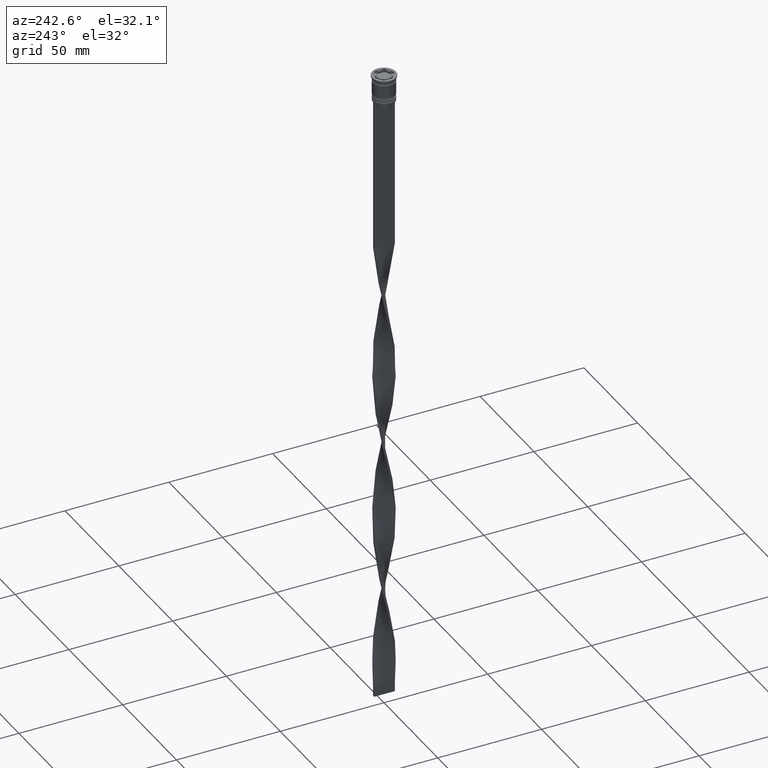
[diagram: clean part render]
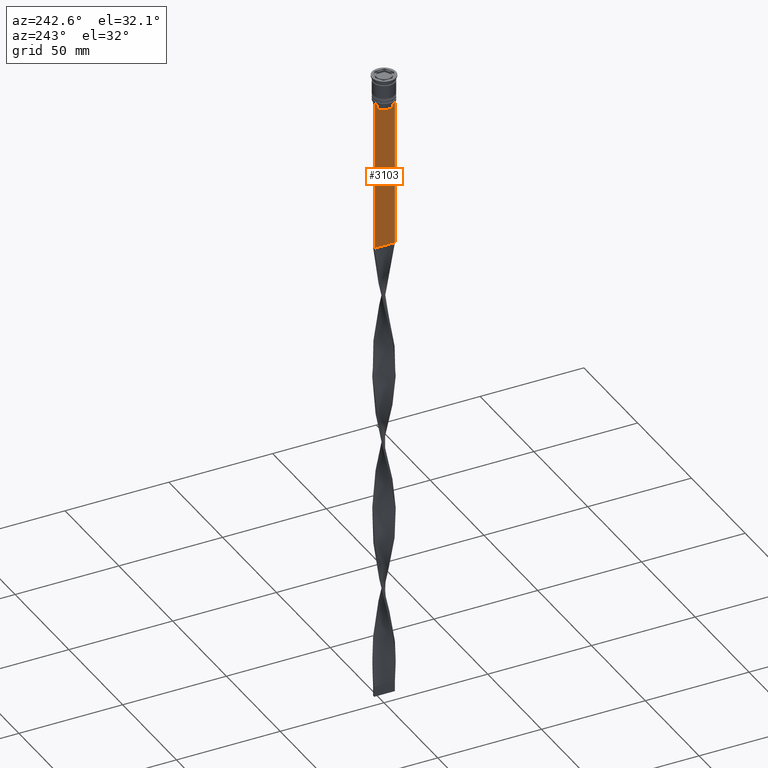
[diagram: same view with one face highlighted and labeled with its STEP entity id]
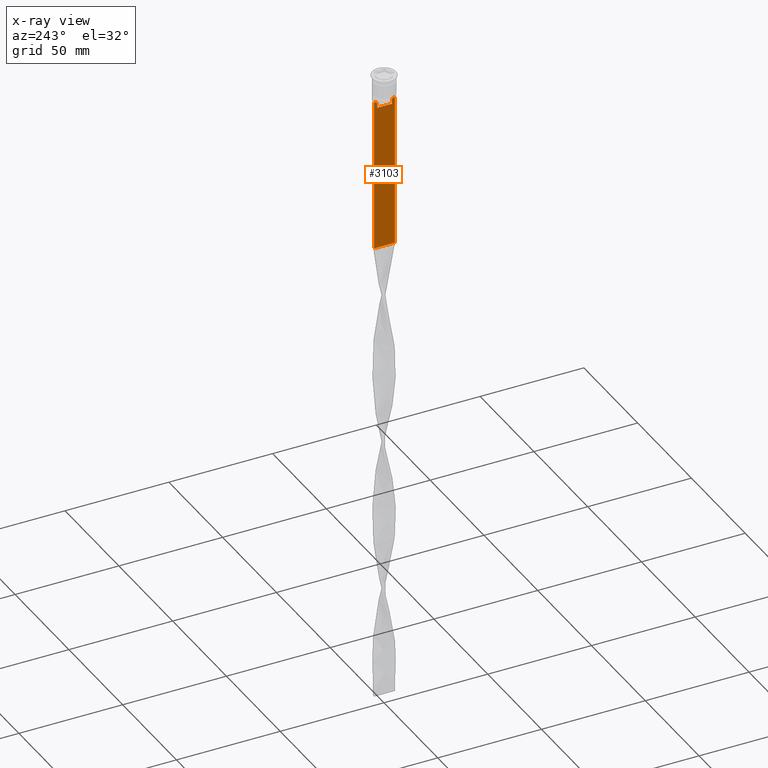
[diagram: x-ray of the same camera — body ghosted, the highlighted face saturated]
A machine part, auxiliary view. The second image highlights one B-rep face of the part: STEP entity #3103.
The next image is the same camera in x-ray: the body ghosted, the highlighted face saturated — about 0% of this face is hidden behind the body in this view.
In plain terms, the highlighted planar face has unit normal (-1, 0, 0).
Its self-contained STEP definition (entity closure, byte-faithful):
#1 = DIRECTION ( 'NONE',  ( 0.000000000000000000, 0.000000000000000000, -1.000000000000000000 ) ) ;
#55 = LINE ( 'NONE', #2759, #1977 ) ;
#86 = ORIENTED_EDGE ( 'NONE', *, *, #87, .F. ) ;
#87 = EDGE_CURVE ( 'NONE', #2163, #2978, #1604, .T. ) ;
#203 = DIRECTION ( 'NONE',  ( 0.000000000000000000, 1.000000000000000000, 0.000000000000000000 ) ) ;
#261 = VECTOR ( 'NONE', #203, 1000.000000000000000 ) ;
#275 = LINE ( 'NONE', #3243, #1540 ) ;
#292 = CARTESIAN_POINT ( 'NONE',  ( -0.5000000000000000000, -4.999999999999999112, -12.50000000000000000 ) ) ;
#310 = CARTESIAN_POINT ( 'NONE',  ( -0.5000000000000000000, -4.119769411022908834, -12.50000000000000000 ) ) ;
#334 = DIRECTION ( 'NONE',  ( 0.000000000000000000, 0.000000000000000000, -1.000000000000000000 ) ) ;
#374 = VECTOR ( 'NONE', #3434, 1000.000000000000000 ) ;
#418 = ORIENTED_EDGE ( 'NONE', *, *, #973, .F. ) ;
#419 = EDGE_CURVE ( 'NONE', #2377, #1474, #823, .T. ) ;
#515 = CARTESIAN_POINT ( 'NONE',  ( -0.5000000000000000000, 3.615591237958188486, -15.50000000000000000 ) ) ;
#547 = EDGE_CURVE ( 'NONE', #2393, #1165, #55, .T. ) ;
#596 = CARTESIAN_POINT ( 'NONE',  ( -0.5000000000000000000, -3.615591237958188042, -13.00000000000000178 ) ) ;
#629 = ORIENTED_EDGE ( 'NONE', *, *, #1768, .F. ) ;
#671 = CARTESIAN_POINT ( 'NONE',  ( -0.5000000000000000000, -3.951794168112525263, -12.66675163073526100 ) ) ;
#692 = EDGE_CURVE ( 'NONE', #1717, #2377, #3292, .T. ) ;
#729 = CARTESIAN_POINT ( 'NONE',  ( -0.5000000000000000000, -4.119769411022908834, -12.50000000000000000 ) ) ;
#823 = LINE ( 'NONE', #1463, #2803 ) ;
#856 = VERTEX_POINT ( 'NONE', #2138 ) ;
#881 = DIRECTION ( 'NONE',  ( 0.000000000000000000, -1.000000000000000000, 0.000000000000000000 ) ) ;
#936 = CARTESIAN_POINT ( 'NONE',  ( -0.5000000000000000000, 3.615591237958188042, 0.000000000000000000 ) ) ;
#960 = B_SPLINE_CURVE_WITH_KNOTS ( 'NONE', 3,
 ( #596, #3710, #671, #310 ),
 .UNSPECIFIED., .F., .F.,
 ( 4, 4 ),
 ( 0.01745179617248910492, 0.01816207215777258452 ),
 .UNSPECIFIED. ) ;
#973 = EDGE_CURVE ( 'NONE', #856, #1165, #2944, .T. ) ;
#1043 = ORIENTED_EDGE ( 'NONE', *, *, #547, .T. ) ;
#1072 = CARTESIAN_POINT ( 'NONE',  ( -0.5000000000000000000, 3.951794205566887985, -12.66675159355373737 ) ) ;
#1136 = CARTESIAN_POINT ( 'NONE',  ( -0.5000000000000000000, 3.615591237958188042, -13.00000000000000178 ) ) ;
#1165 = VERTEX_POINT ( 'NONE', #2884 ) ;
#1174 = FACE_OUTER_BOUND ( 'NONE', #3323, .T. ) ;
#1221 = VECTOR ( 'NONE', #1952, 1000.000000000000000 ) ;
#1431 = CARTESIAN_POINT ( 'NONE',  ( -0.5000000000000000000, -3.615591237958188486, -15.50000000000000000 ) ) ;
#1463 = CARTESIAN_POINT ( 'NONE',  ( -0.5000000000000000000, -3.615591237958188042, 0.000000000000000000 ) ) ;
#1474 = VERTEX_POINT ( 'NONE', #3105 ) ;
#1540 = VECTOR ( 'NONE', #2380, 1000.000000000000000 ) ;
#1604 = LINE ( 'NONE', #2222, #374 ) ;
#1607 = EDGE_CURVE ( 'NONE', #2393, #1702, #2871, .T. ) ;
#1702 = VERTEX_POINT ( 'NONE', #2073 ) ;
#1717 = VERTEX_POINT ( 'NONE', #515 ) ;
#1720 = CARTESIAN_POINT ( 'NONE',  ( -0.5000000000000000000, -4.999999999999999112, -86.00000000000000000 ) ) ;
#1768 = EDGE_CURVE ( 'NONE', #2978, #856, #275, .T. ) ;
#1927 = ORIENTED_EDGE ( 'NONE', *, *, #1607, .F. ) ;
#1952 = DIRECTION ( 'NONE',  ( 0.000000000000000000, -1.000000000000000000, 0.000000000000000000 ) ) ;
#1977 = VECTOR ( 'NONE', #1, 1000.000000000000000 ) ;
#1990 = EDGE_CURVE ( 'NONE', #1474, #2163, #960, .T. ) ;
#1993 = CARTESIAN_POINT ( 'NONE',  ( -0.5000000000000000000, 3.615591237958188042, -13.00000000000000178 ) ) ;
#2013 = CARTESIAN_POINT ( 'NONE',  ( -0.5000000000000000000, 5.000000000000000888, -12.50000000000000000 ) ) ;
#2029 = DIRECTION ( 'NONE',  ( -1.000000000000000000, 0.000000000000000000, 0.000000000000000000 ) ) ;
#2073 = CARTESIAN_POINT ( 'NONE',  ( -0.5000000000000000000, 4.119769411022908834, -12.50000000000000000 ) ) ;
#2138 = CARTESIAN_POINT ( 'NONE',  ( -0.5000000000000000000, -4.999999999999999112, -86.00000000000000000 ) ) ;
#2163 = VERTEX_POINT ( 'NONE', #729 ) ;
#2222 = CARTESIAN_POINT ( 'NONE',  ( -0.5000000000000000000, -4.999999999999999112, -12.50000000000000000 ) ) ;
#2292 = VECTOR ( 'NONE', #334, 1000.000000000000000 ) ;
#2350 = ORIENTED_EDGE ( 'NONE', *, *, #692, .F. ) ;
#2357 = CARTESIAN_POINT ( 'NONE',  ( -0.5000000000000000000, 4.119769411022908834, -12.50000000000000000 ) ) ;
#2377 = VERTEX_POINT ( 'NONE', #1431 ) ;
#2380 = DIRECTION ( 'NONE',  ( 0.000000000000000000, 0.000000000000000000, -1.000000000000000000 ) ) ;
#2393 = VERTEX_POINT ( 'NONE', #2013 ) ;
#2397 = PLANE ( 'NONE',  #2745 ) ;
#2553 = VECTOR ( 'NONE', #881, 1000.000000000000000 ) ;
#2649 = EDGE_CURVE ( 'NONE', #2723, #1717, #3669, .T. ) ;
#2723 = VERTEX_POINT ( 'NONE', #1993 ) ;
#2745 = AXIS2_PLACEMENT_3D ( 'NONE', #3327, #2029, #3239 ) ;
#2759 = CARTESIAN_POINT ( 'NONE',  ( -0.5000000000000000000, 5.000000000000000888, -2.450124378879110054 ) ) ;
#2803 = VECTOR ( 'NONE', #2961, 1000.000000000000000 ) ;
#2871 = LINE ( 'NONE', #2892, #1221 ) ;
#2884 = CARTESIAN_POINT ( 'NONE',  ( -0.5000000000000000000, 5.000000000000000888, -86.00000000000000000 ) ) ;
#2892 = CARTESIAN_POINT ( 'NONE',  ( -0.5000000000000000000, -4.999999999999999112, -12.50000000000000000 ) ) ;
#2933 = CARTESIAN_POINT ( 'NONE',  ( -0.5000000000000000000, 3.783746449387932920, -12.83342999751715752 ) ) ;
#2944 = LINE ( 'NONE', #1720, #261 ) ;
#2961 = DIRECTION ( 'NONE',  ( -0.000000000000000000, -0.000000000000000000, 1.000000000000000000 ) ) ;
#2978 = VERTEX_POINT ( 'NONE', #292 ) ;
#3103 = ADVANCED_FACE ( 'NONE', ( #1174 ), #2397, .T. ) ;
#3105 = CARTESIAN_POINT ( 'NONE',  ( -0.5000000000000000000, -3.615591237958188042, -13.00000000000000178 ) ) ;
#3115 = ORIENTED_EDGE ( 'NONE', *, *, #2649, .F. ) ;
#3239 = DIRECTION ( 'NONE',  ( 0.000000000000000000, 0.000000000000000000, 1.000000000000000000 ) ) ;
#3243 = CARTESIAN_POINT ( 'NONE',  ( -0.5000000000000000000, -4.999999999999999112, -2.450124378879110054 ) ) ;
#3280 = EDGE_CURVE ( 'NONE', #1702, #2723, #3667, .T. ) ;
#3292 = LINE ( 'NONE', #3915, #2553 ) ;
#3323 = EDGE_LOOP ( 'NONE', ( #3444, #1927, #1043, #418, #629, #86, #3464, #3879, #2350, #3115 ) ) ;
#3327 = CARTESIAN_POINT ( 'NONE',  ( -0.5000000000000000000, -4.999999999999999112, -2.450124378879110054 ) ) ;
#3434 = DIRECTION ( 'NONE',  ( 0.000000000000000000, -1.000000000000000000, 0.000000000000000000 ) ) ;
#3444 = ORIENTED_EDGE ( 'NONE', *, *, #3280, .F. ) ;
#3464 = ORIENTED_EDGE ( 'NONE', *, *, #1990, .F. ) ;
#3667 = B_SPLINE_CURVE_WITH_KNOTS ( 'NONE', 3,
 ( #2357, #1072, #2933, #1136 ),
 .UNSPECIFIED., .F., .F.,
 ( 4, 4 ),
 ( 0.007067514914986629433, 0.007777582239375527111 ),
 .UNSPECIFIED. ) ;
#3669 = LINE ( 'NONE', #936, #2292 ) ;
#3710 = CARTESIAN_POINT ( 'NONE',  ( -0.5000000000000000000, -3.783746406711538945, -12.83343003979123687 ) ) ;
#3879 = ORIENTED_EDGE ( 'NONE', *, *, #419, .F. ) ;
#3915 = CARTESIAN_POINT ( 'NONE',  ( -0.5000000000000000000, 3.650000000000003464, -15.50000000000000000 ) ) ;